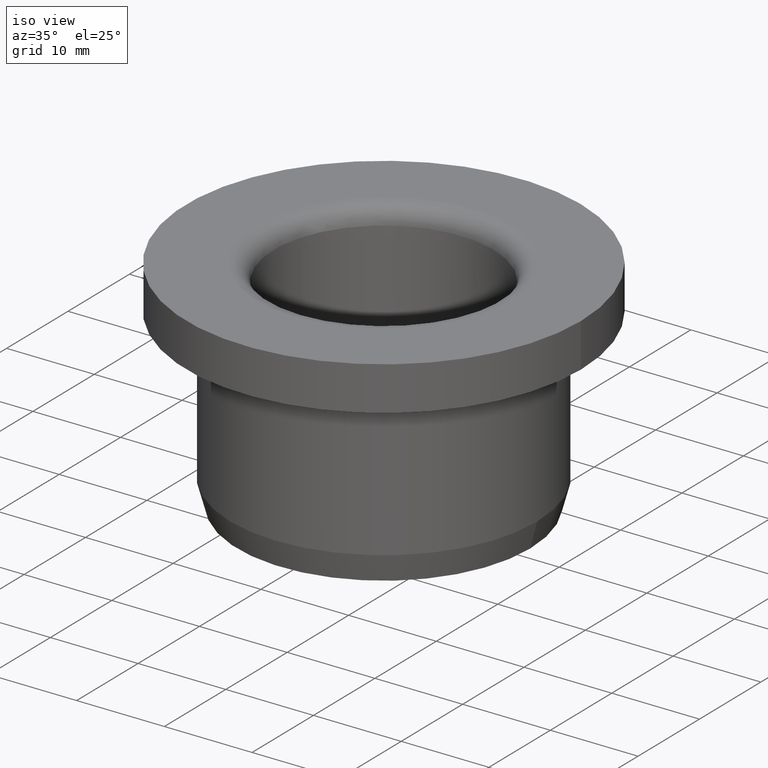
[diagram: clean part render]
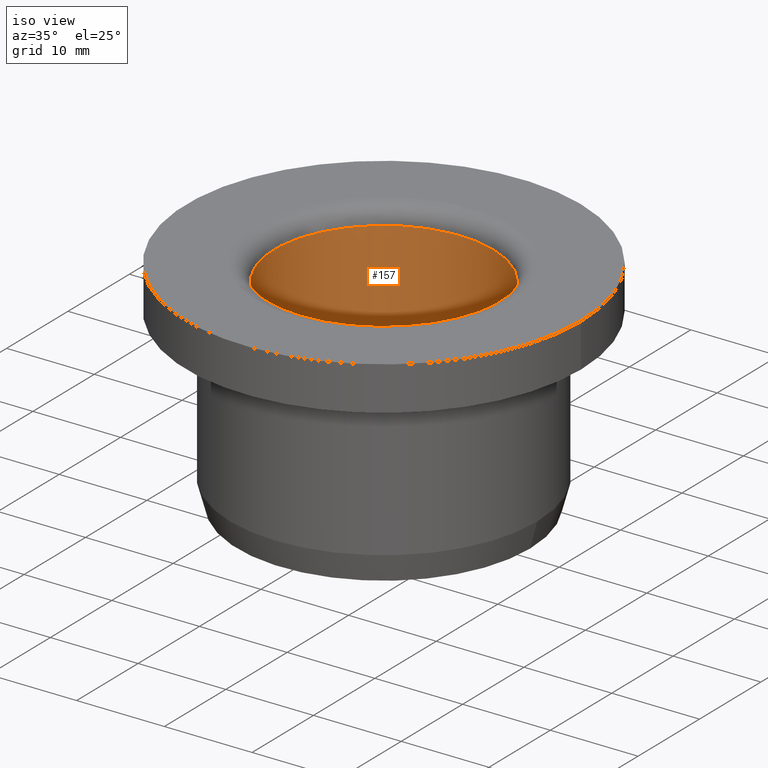
[diagram: same view with one face highlighted and labeled with its STEP entity id]
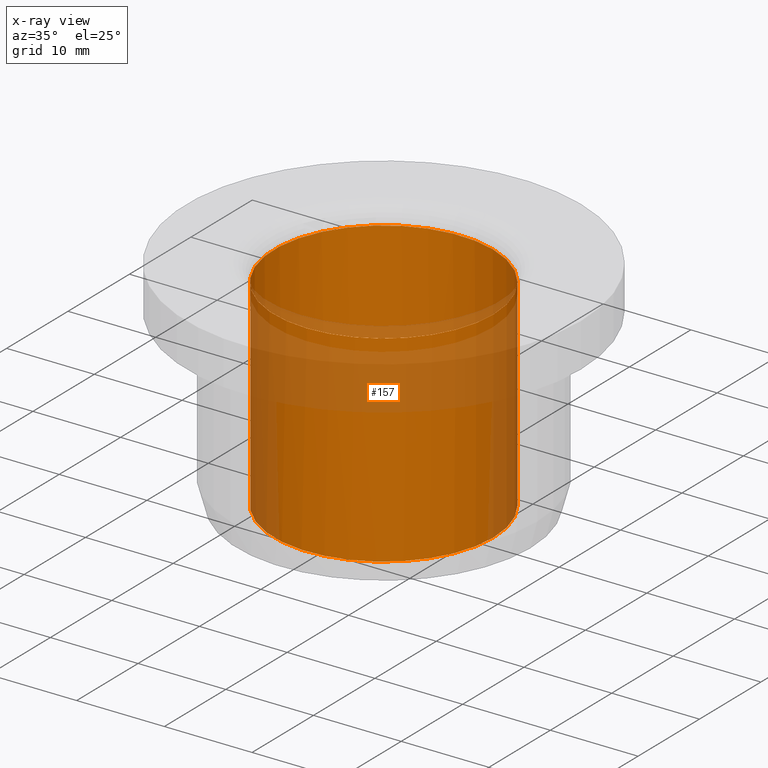
[diagram: x-ray of the same camera — body ghosted, the highlighted face saturated]
A machine part, iso view. The second image highlights one B-rep face of the part: STEP entity #157.
The next image is the same camera in x-ray: the body ghosted, the highlighted face saturated — about 34% of this face is hidden behind the body in this view.
In plain terms, the highlighted cylindrical surface (bore or boss wall) has radius 12.5 mm, axis along (0, -0, -1).
Its self-contained STEP definition (entity closure, byte-faithful):
#157=ADVANCED_FACE('',(#176,#177),#178,.F.);
#176=FACE_OUTER_BOUND('',#204,.T.);
#177=FACE_OUTER_BOUND('',#205,.T.);
#178=CYLINDRICAL_SURFACE('',#206,0.0125);
#204=EDGE_LOOP('',(#239));
#205=EDGE_LOOP('',(#240));
#206=AXIS2_PLACEMENT_3D('',#241,#242,#243);
#239=ORIENTED_EDGE('',*,*,#271,.T.);
#240=ORIENTED_EDGE('',*,*,#272,.T.);
#241=CARTESIAN_POINT('',(0.0,0.0,3.40872898583923E-020));
#242=DIRECTION('',(0.0,-6.12323399573677E-017,-1.0));
#243=DIRECTION('',(0.0,1.0,-6.12323399573677E-017));
#271=EDGE_CURVE('',#287,#287,#288,.T.);
#272=EDGE_CURVE('',#289,#289,#290,.T.);
#287=VERTEX_POINT('',#305);
#288=CIRCLE('',#306,0.0125);
#289=VERTEX_POINT('',#307);
#290=CIRCLE('',#308,0.0125);
#305=CARTESIAN_POINT('',(0.0,-0.0125,0.023));
#306=AXIS2_PLACEMENT_3D('',#330,#331,#332);
#307=CARTESIAN_POINT('',(0.0125,0.0,3.40872898583923E-020));
#308=AXIS2_PLACEMENT_3D('',#333,#334,#335);
#330=CARTESIAN_POINT('',(0.0,1.40834381901946E-018,0.023));
#331=DIRECTION('',(0.0,6.12323399573677E-017,1.0));
#332=DIRECTION('',(0.0,-1.0,6.12323399573677E-017));
#333=CARTESIAN_POINT('',(0.0,0.0,3.40872898583923E-020));
#334=DIRECTION('',(0.0,-6.12323399573677E-017,-1.0));
#335=DIRECTION('',(0.0,1.0,-6.12323399573677E-017));